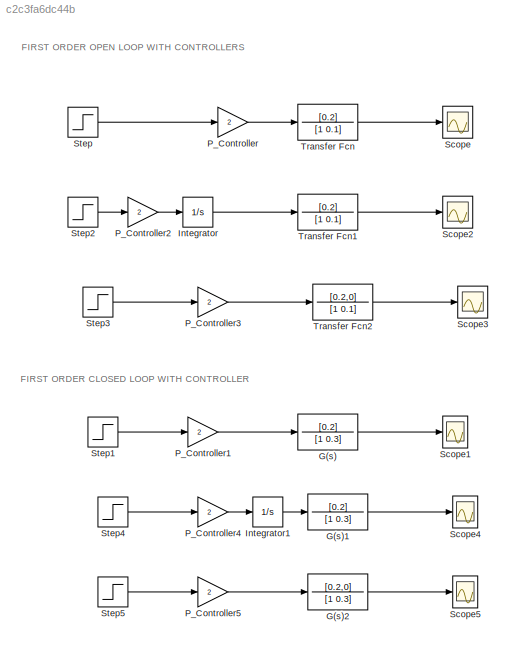
MODEL slx_c2c3fa6dc44b
KIND model
CONFIG AbsTol = auto
CONFIG EnableMultiTasking = off
CONFIG FixedStep = auto
CONFIG MaxStep = auto
CONFIG MinStep = auto
CONFIG RelTol = 1e-3
CONFIG SampleTimeConstraint = Unconstrained
CONFIG SolverName = VariableStepAuto
CONFIG StartTime = 0.0
CONFIG StopTime = 100
BLOCK [TransferFcn] G(s)
  Denominator = [1 0.3]
  Numerator = [0.2]
BLOCK [TransferFcn] G(s)1
  Denominator = [1 0.3]
  Numerator = [0.2]
BLOCK [TransferFcn] G(s)2
  Denominator = [1 0.3]
  Numerator = [0.2,0]
BLOCK [Integrator] Integrator
  Ports = [1, 1]
BLOCK [Integrator] Integrator1
  Ports = [1, 1]
BLOCK [Gain] P_Controller
  Gain = 2
BLOCK [Gain] P_Controller1
  Gain = 2
BLOCK [Gain] P_Controller2
  Gain = 2
BLOCK [Gain] P_Controller3
  Gain = 2
BLOCK [Gain] P_Controller4
  Gain = 2
BLOCK [Gain] P_Controller5
  Gain = 2
BLOCK [Scope] Scope
  Floating = off
  NumInputPorts = 1
  Ports = [1]
  ScopeSpecificationString = Simulink.scopes.TimeScopeBlockCfg('CurrentConfiguration', extmgr.ConfigurationSet(extmgr.Configuration('Core','General UI',true),extmgr.Configuration('Core','Source UI',true),extmgr.Configuration('Sources','WiredSimulink',true),extmgr.Configuration('Visuals','Time Domain',true,'SerializedDisplays',{struct('MinYLimReal','-0.49997','MaxYLimReal','4.49977','YLabelReal','','MinYLimMag','0.00000','MaxY...<+1706ch>
BLOCK [Scope] Scope1
  Floating = off
  NumInputPorts = 1
  Ports = [1]
  ScopeSpecificationString = Simulink.scopes.TimeScopeBlockCfg('CurrentConfiguration', extmgr.ConfigurationSet(extmgr.Configuration('Core','General UI',true),extmgr.Configuration('Core','Source UI',true),extmgr.Configuration('Sources','WiredSimulink',true,'DataLoggingVariableName','ScopeData1'),extmgr.Configuration('Visuals','Time Domain',true,'SerializedDisplays',{struct('MinYLimReal','-0.16667','MaxYLimReal','1.5','YLabelRe...<+1747ch>
BLOCK [Scope] Scope2
  Floating = off
  NumInputPorts = 1
  Ports = [1]
  ScopeSpecificationString = Simulink.scopes.TimeScopeBlockCfg('CurrentConfiguration', extmgr.ConfigurationSet(extmgr.Configuration('Core','General UI',true),extmgr.Configuration('Core','Source UI',true),extmgr.Configuration('Sources','WiredSimulink',true,'DataLoggingVariableName','ScopeData2'),extmgr.Configuration('Visuals','Time Domain',true,'SerializedDisplays',{struct('MinYLimReal','-44.50025','MaxYLimReal','400.50226','Y...<+1754ch>
BLOCK [Scope] Scope3
  Floating = off
  NumInputPorts = 1
  Ports = [1]
  ScopeSpecificationString = Simulink.scopes.TimeScopeBlockCfg('CurrentConfiguration', extmgr.ConfigurationSet(extmgr.Configuration('Core','General UI',true),extmgr.Configuration('Core','Source UI',true),extmgr.Configuration('Sources','WiredSimulink',true,'DataLoggingVariableName','ScopeData3'),extmgr.Configuration('Visuals','Time Domain',true,'SerializedDisplays',{struct('MinYLimReal','-0.05','MaxYLimReal','0.45','YLabelReal...<+1704ch>
BLOCK [Scope] Scope4
  Floating = off
  NumInputPorts = 1
  Ports = [1]
  ScopeSpecificationString = Simulink.scopes.TimeScopeBlockCfg('CurrentConfiguration', extmgr.ConfigurationSet(extmgr.Configuration('Core','General UI',true),extmgr.Configuration('Core','Source UI',true),extmgr.Configuration('Sources','WiredSimulink',true,'DataLoggingVariableName','ScopeData4'),extmgr.Configuration('Visuals','Time Domain',true,'SerializedDisplays',{struct('MinYLimReal','-15.94444','MaxYLimReal','143.5','YLabe...<+1757ch>
BLOCK [Scope] Scope5
  Floating = off
  NumInputPorts = 1
  Ports = [1]
  ScopeSpecificationString = Simulink.scopes.TimeScopeBlockCfg('CurrentConfiguration', extmgr.ConfigurationSet(extmgr.Configuration('Core','General UI',true),extmgr.Configuration('Core','Source UI',true),extmgr.Configuration('Sources','WiredSimulink',true,'DataLoggingVariableName','ScopeData5'),extmgr.Configuration('Visuals','Time Domain',true,'SerializedDisplays',{struct('MinYLimReal','-0.05','MaxYLimReal','0.45','YLabelReal...<+1722ch>
BLOCK [Step] Step
  SampleTime = 0
BLOCK [Step] Step1
  SampleTime = 0
BLOCK [Step] Step2
  SampleTime = 0
BLOCK [Step] Step3
  SampleTime = 0
BLOCK [Step] Step4
  SampleTime = 0
BLOCK [Step] Step5
  SampleTime = 0
BLOCK [TransferFcn] Transfer Fcn
  Denominator = [1 0.1]
  Numerator = [0.2]
BLOCK [TransferFcn] Transfer Fcn1
  Denominator = [1 0.1]
  Numerator = [0.2]
BLOCK [TransferFcn] Transfer Fcn2
  Denominator = [1 0.1]
  Numerator = [0.2,0]
ANNOTATION (root): FIRST ORDER CLOSED LOOP WITH CONTROLLER
ANNOTATION (root): FIRST ORDER OPEN LOOP WITH CONTROLLERS
LINE G(s)1:1 -> Scope4:1
LINE G(s)2:1 -> Scope5:1
LINE G(s):1 -> Scope1:1
LINE Integrator1:1 -> G(s)1:1
LINE Integrator:1 -> Transfer Fcn1:1
LINE P_Controller1:1 -> G(s):1
LINE P_Controller2:1 -> Integrator:1
LINE P_Controller3:1 -> Transfer Fcn2:1
LINE P_Controller4:1 -> Integrator1:1
LINE P_Controller5:1 -> G(s)2:1
LINE P_Controller:1 -> Transfer Fcn:1
LINE Step1:1 -> P_Controller1:1
LINE Step2:1 -> P_Controller2:1
LINE Step3:1 -> P_Controller3:1
LINE Step4:1 -> P_Controller4:1
LINE Step5:1 -> P_Controller5:1
LINE Step:1 -> P_Controller:1
LINE Transfer Fcn1:1 -> Scope2:1
LINE Transfer Fcn2:1 -> Scope3:1
LINE Transfer Fcn:1 -> Scope:1
